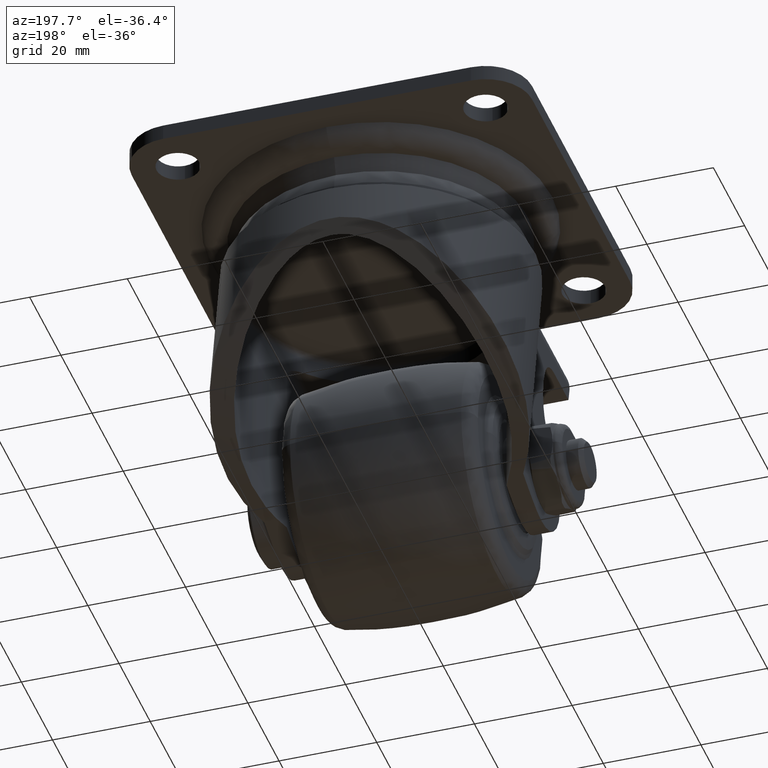
[diagram: clean part render]
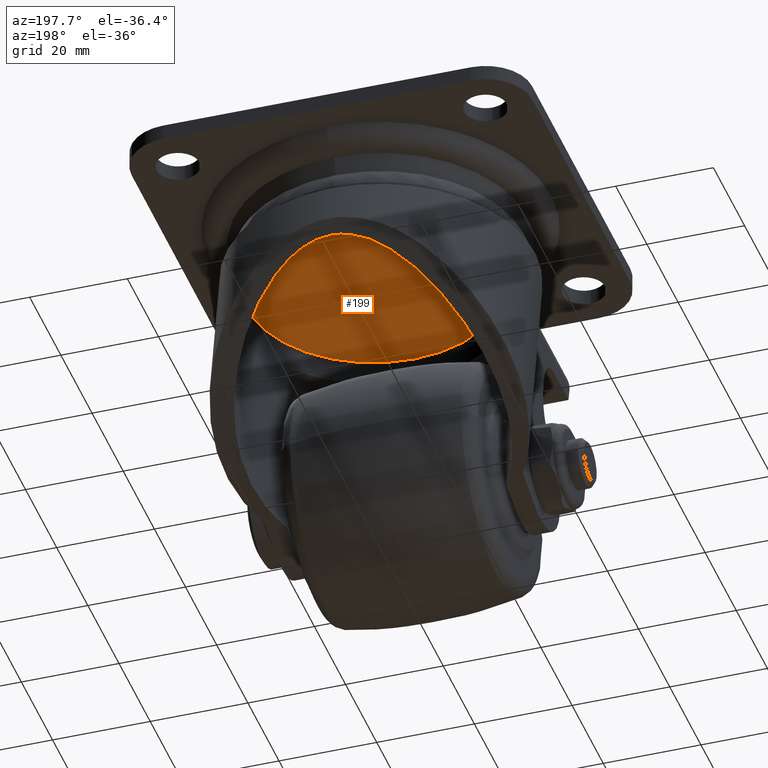
[diagram: same view with one face highlighted and labeled with its STEP entity id]
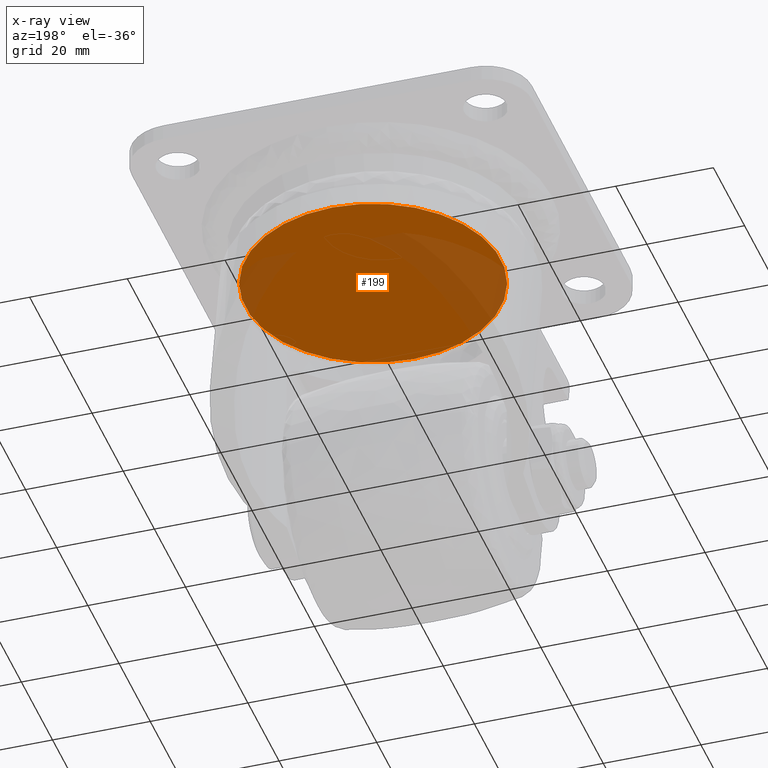
[diagram: x-ray of the same camera — body ghosted, the highlighted face saturated]
A machine part, auxiliary view. The second image highlights one B-rep face of the part: STEP entity #199.
The next image is the same camera in x-ray: the body ghosted, the highlighted face saturated — about 23% of this face is hidden behind the body in this view.
In plain terms, the highlighted planar face has unit normal (0, 0, -1).
Its self-contained STEP definition (entity closure, byte-faithful):
#199=ADVANCED_FACE('',(#837),#836,.T.);
#836=PLANE('',#2452);
#837=FACE_OUTER_BOUND('',#2453,.T.);
#2449=CARTESIAN_POINT('',(-5.43517543415E+01,-2.00000000000E+01,5.51450000000E+01));
#2450=DIRECTION('',(0.00000000000E+00,-1.00000000000E+00,0.00000000000E+00));
#2451=DIRECTION('',(0.00000000000E+00,0.00000000000E+00,-1.00000000000E+00));
#2452=AXIS2_PLACEMENT_3D('',#2449,#2450,#2451);
#2453=EDGE_LOOP('',(#4148,#4149));
#4148=ORIENTED_EDGE('',*,*,#4878,.T.);
#4149=ORIENTED_EDGE('',*,*,#4879,.T.);
#4878=EDGE_CURVE('',#6164,#6165,#6166,.T.);
#4879=EDGE_CURVE('',#6165,#6164,#6172,.T.);
#6164=VERTEX_POINT('',#8870);
#6165=VERTEX_POINT('',#8871);
#6166=CIRCLE('',#8875,2.61500000000E+01);
#6172=CIRCLE('',#8879,2.61500000000E+01);
#8870=CARTESIAN_POINT('',(0.00000000000E+00,-2.00000000000E+01,-3.11500000000E+01));
#8871=CARTESIAN_POINT('',(1.18423789293E-15,-2.00000000000E+01,2.11500000000E+01));
#8872=CARTESIAN_POINT('',(0.00000000000E+00,-2.00000000000E+01,-5.00000000000E+00));
#8873=DIRECTION('',(0.00000000000E+00,-1.00000000000E+00,-0.00000000000E+00));
#8874=DIRECTION('',(-1.22460635382E-16,0.00000000000E+00,-1.00000000000E+00));
#8875=AXIS2_PLACEMENT_3D('',#8872,#8873,#8874);
#8876=CARTESIAN_POINT('',(0.00000000000E+00,-2.00000000000E+01,-5.00000000000E+00));
#8877=DIRECTION('',(0.00000000000E+00,-1.00000000000E+00,-0.00000000000E+00));
#8878=DIRECTION('',(-1.22460635382E-16,0.00000000000E+00,-1.00000000000E+00));
#8879=AXIS2_PLACEMENT_3D('',#8876,#8877,#8878);